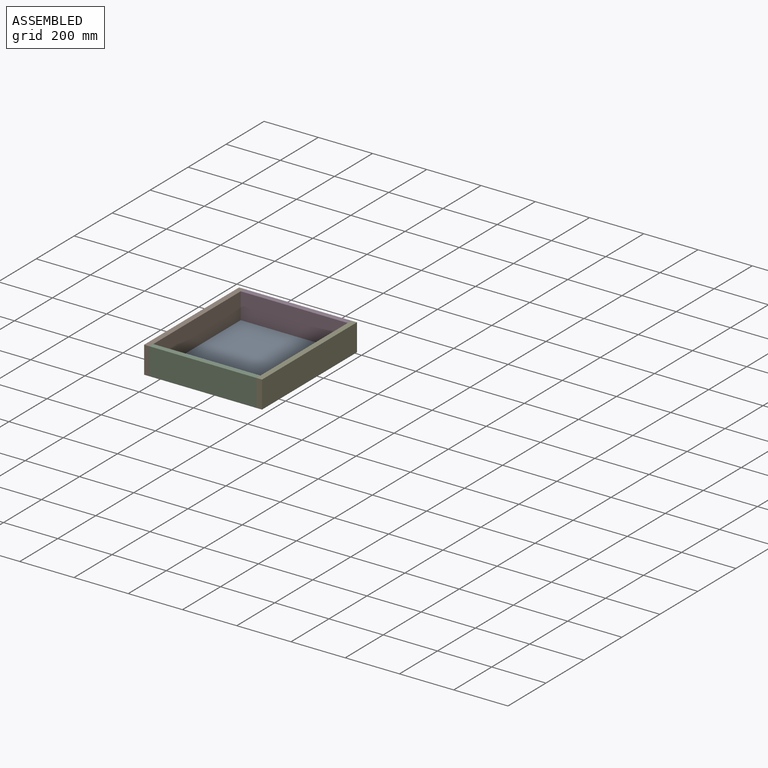
[diagram: assembled view]
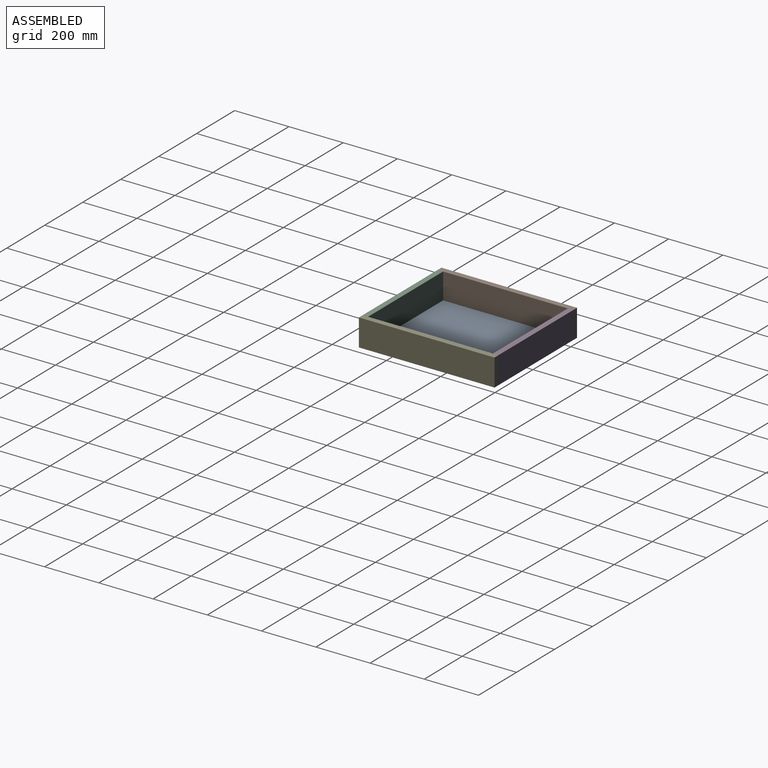
[diagram: assembled view, second angle]
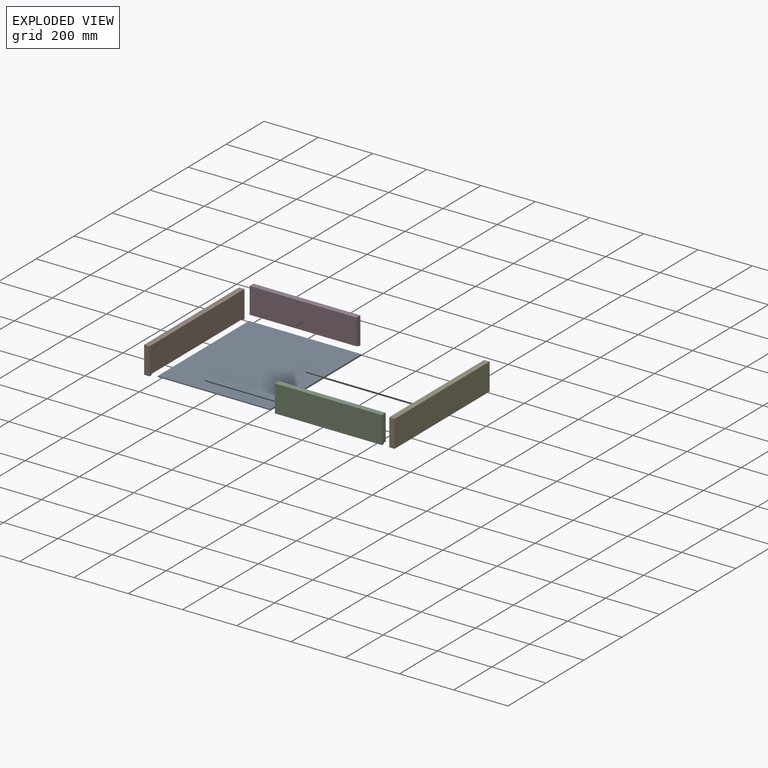
[diagram: exploded view]
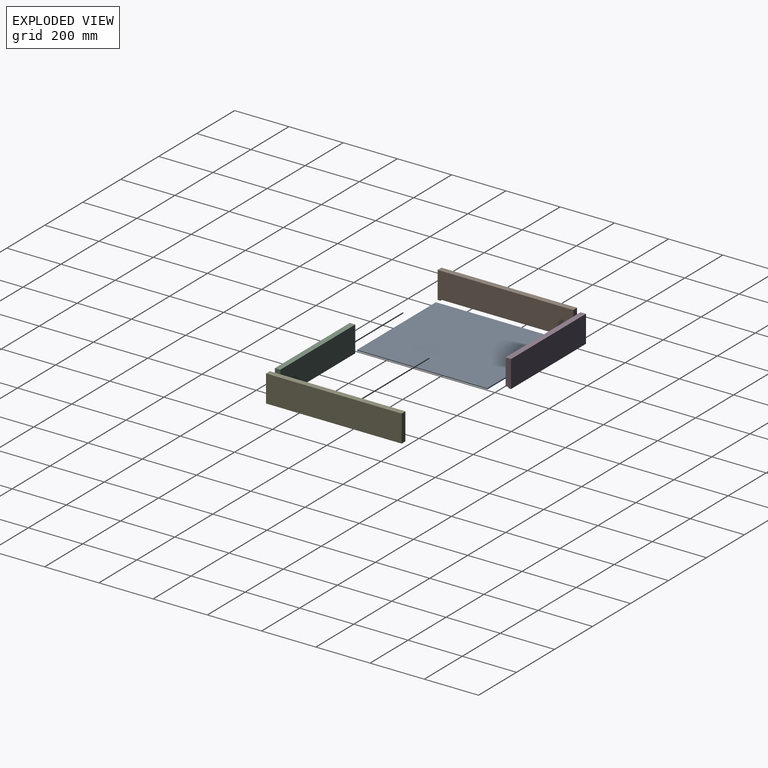
[diagram: exploded view, second angle]
ASSEMBLY  parts=5 mates=12
PART A: 6 faces, bbox 414.6x480x4 mm
  f0: plane 480x4mm, normal (-1,0,0), area 1920mm2, adj f1,f3,f4,f5
  f1: plane 414.6x4mm, normal (0,-1,0), area 1658.4mm2, adj f0,f2,f4,f5
  f2: plane 480x4mm, normal (1,0,0), area 1920mm2, adj f1,f3,f4,f5
  f3: plane 414.6x4mm, normal (0,1,0), area 1658.4mm2, adj f0,f2,f4,f5
  f4: plane 480x414.6mm, normal (0,0,1), area 199008mm2, adj f0,f1,f2,f3
  f5: plane 480x414.6mm, normal (0,0,-1), area 199008mm2, adj f0,f1,f2,f3
PART B: 10 faces, bbox 20x500x100 mm
  f0: plane 500x100mm, normal (1,0,0), area 48080mm2, adj f1,f2,f3,f4,f6,f7,f9
  f1: plane 100x20mm, normal (0,-1,0), area 2000mm2, adj f0,f2,f4,f5
  f2: plane 500x20mm, normal (0,0,-1), area 5200mm2, adj f0,f1,f3,f5,f6,f7,f8
  f3: plane 100x20mm, normal (0,1,0), area 2000mm2, adj f0,f2,f4,f5
  f4: plane 500x20mm, normal (0,0,1), area 10000mm2, adj f0,f1,f3,f5
  f5: plane 500x100mm, normal (-1,0,0), area 50000mm2, adj f1,f2,f3,f4
  f6: plane 10x4mm, normal (0,-1,0), area 40mm2, adj f0,f2,f8,f9
  f7: plane 10x4mm, normal (0,1,0), area 40mm2, adj f0,f2,f8,f9
  f8: plane 480x4mm, normal (1,0,0), area 1920mm2, adj f2,f6,f7,f9
  f9: plane 480x10mm, normal (0,0,-1), area 4800mm2, adj f0,f6,f7,f8
PART C: 8 faces, bbox 394.6x20x100 mm
  f0: plane 100x20mm, normal (-1,0,0), area 1960mm2, adj f1,f2,f4,f5,f6,f7
  f1: plane 394.6x96mm, normal (0,1,0), area 37881.6mm2, adj f0,f3,f4,f7
  f2: plane 394.6x10mm, normal (0,0,-1), area 3946mm2, adj f0,f3,f5,f6
  f3: plane 100x20mm, normal (1,0,0), area 1960mm2, adj f1,f2,f4,f5,f6,f7
  f4: plane 394.6x20mm, normal (0,0,1), area 7892mm2, adj f0,f1,f3,f5
  f5: plane 394.6x100mm, normal (0,-1,0), area 39460mm2, adj f0,f2,f3,f4
  f6: plane 394.6x4mm, normal (0,1,0), area 1578.4mm2, adj f0,f2,f3,f7
  f7: plane 394.6x10mm, normal (0,0,-1), area 3946mm2, adj f0,f1,f3,f6
PART D: same geometry as C
PART E: same geometry as B
PLACE A t=(-35.42,101.03,-47.31)mm
PLACE B t=(-45.42,91.03,-47.31)mm
PLACE C t=(-25.42,111.03,-47.31)mm fixed
PLACE D rot(axis=(0,0,1),180deg) t=(369.18,571.03,-47.31)mm
PLACE E rot(axis=(0,0,1),180deg) t=(389.18,591.03,-47.31)mm
MATE planar D.f5 <-> B.f3  axis (0,1,0) through (-25.42,591.03,52.69)mm
MATE planar D.f3 <-> B.f0  axis (-1,0,0) through (-25.42,581.14,3.67)mm
MATE planar A.f1 <-> C.f6  axis (0,-1,0) through (171.88,101.03,-45.31)mm
MATE planar A.f0 <-> B.f8  axis (-1,0,0) through (-35.42,341.03,-45.31)mm
MATE planar B.f0 <-> C.f0  axis (1,0,0) through (-25.42,91.03,2.69)mm
MATE planar E.f0 <-> D.f0  axis (-1,0,0) through (369.18,341.03,4.61)mm
MATE planar D.f2 <-> B.f2  axis (0,0,-1) through (171.88,586.03,-47.31)mm
MATE planar B.f1 <-> C.f5  axis (0,-1,0) through (-35.42,91.03,2.69)mm
MATE planar E.f1 <-> D.f5  axis (0,1,0) through (389.18,591.03,-47.31)mm
MATE planar E.f2 <-> D.f2  axis (0,0,-1) through (383.8,341.03,-47.31)mm
MATE planar A.f5 <-> D.f2  axis (0,0,-1) through (171.88,341.03,-47.31)mm
MATE planar B.f4 <-> C.f4  axis (0,0,1) through (-35.42,341.03,52.69)mm
